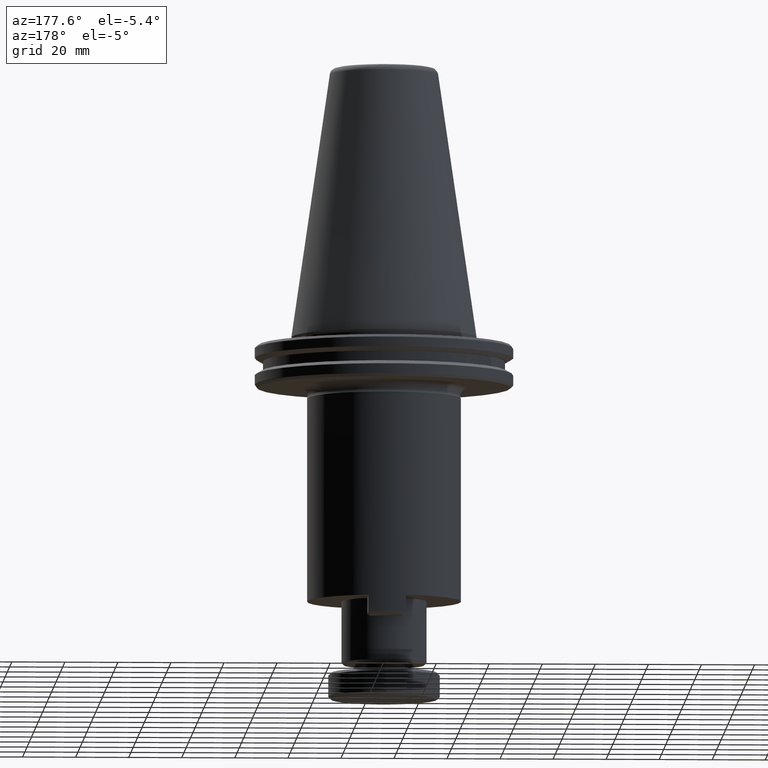
[diagram: clean part render]
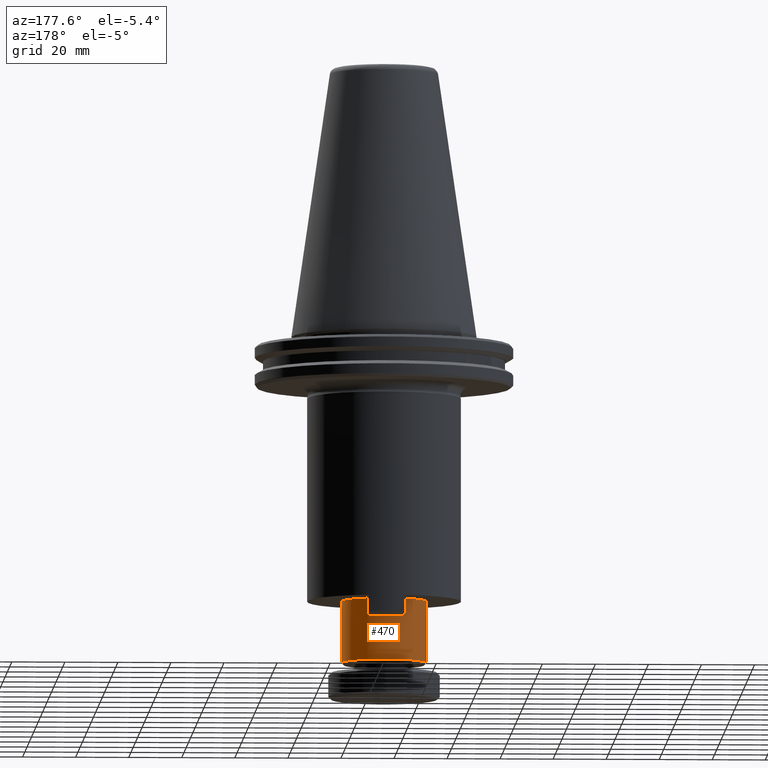
[diagram: same view with one face highlighted and labeled with its STEP entity id]
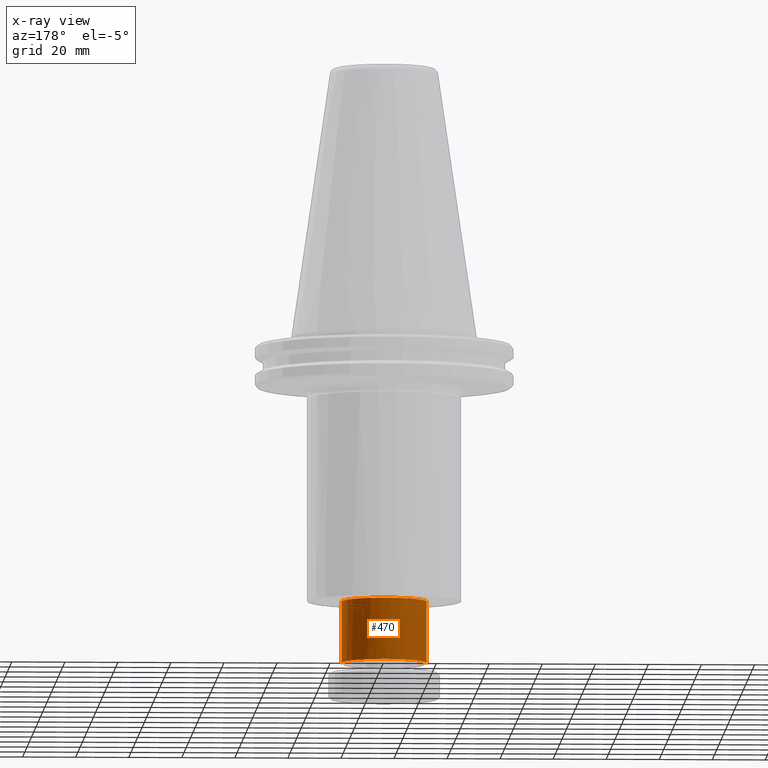
[diagram: x-ray of the same camera — body ghosted, the highlighted face saturated]
A machine part, auxiliary view. The second image highlights one B-rep face of the part: STEP entity #470.
The next image is the same camera in x-ray: the body ghosted, the highlighted face saturated — about 0% of this face is hidden behind the body in this view.
In plain terms, the highlighted cylindrical surface (partial cylindrical patch) has radius 16 mm, axis along (-0, 0, 1).
Its self-contained STEP definition (entity closure, byte-faithful):
#31 = CARTESIAN_POINT ( 'NONE',  ( 91.78900745422478700, 111.8872747687010000, -25.15049722171960800 ) ) ;
#129 = CARTESIAN_POINT ( 'NONE',  ( 75.78900745422477300, 111.8872747687010000, -2.000497217484769900 ) ) ;
#192 = DIRECTION ( 'NONE',  ( 1.000000000000000000, 0.0000000000000000000, 4.336808689942017700E-016 ) ) ;
#328 = CYLINDRICAL_SURFACE ( 'NONE', #451, 16.00000000000000000 ) ;
#358 = FACE_OUTER_BOUND ( 'NONE', #729, .T. ) ;
#359 = DIRECTION ( 'NONE',  ( -4.336808689942017700E-016, 0.0000000000000000000, 1.000000000000000000 ) ) ;
#382 = CIRCLE ( 'NONE', #1007, 16.00000000000000000 ) ;
#384 = LINE ( 'NONE', #1460, #388 ) ;
#385 = DIRECTION ( 'NONE',  ( 1.000000000000000000, 0.0000000000000000000, 4.336808689942017700E-016 ) ) ;
#388 = VECTOR ( 'NONE', #1487, 1000.000000000000000 ) ;
#413 = EDGE_CURVE ( 'NONE', #1002, #2213, #384, .T. ) ;
#451 = AXIS2_PLACEMENT_3D ( 'NONE', #1720, #359, #385 ) ;
#470 = ADVANCED_FACE ( 'NONE', ( #358 ), #328, .T. ) ;
#516 = DIRECTION ( 'NONE',  ( -4.336808689942017700E-016, 0.0000000000000000000, 1.000000000000000000 ) ) ;
#525 = CIRCLE ( 'NONE', #2155, 16.00000000000000000 ) ;
#634 = CARTESIAN_POINT ( 'NONE',  ( 91.78900745422477300, 111.8872747687010000, -2.000497217484769900 ) ) ;
#712 = DIRECTION ( 'NONE',  ( -0.0000000000000000000, -0.0000000000000000000, 1.000000000000000000 ) ) ;
#729 = EDGE_LOOP ( 'NONE', ( #1286, #940, #1616, #2490, #1546 ) ) ;
#920 = CARTESIAN_POINT ( 'NONE',  ( 91.78900745422478700, 127.8872747687009600, -25.15049722171960800 ) ) ;
#940 = ORIENTED_EDGE ( 'NONE', *, *, #1134, .T. ) ;
#1002 = VERTEX_POINT ( 'NONE', #2163 ) ;
#1007 = AXIS2_PLACEMENT_3D ( 'NONE', #1992, #1573, #1173 ) ;
#1134 = EDGE_CURVE ( 'NONE', #2446, #1002, #2506, .T. ) ;
#1173 = DIRECTION ( 'NONE',  ( 1.000000000000000000, 0.0000000000000000000, 4.336808689942017700E-016 ) ) ;
#1286 = ORIENTED_EDGE ( 'NONE', *, *, #2611, .T. ) ;
#1394 = VERTEX_POINT ( 'NONE', #2402 ) ;
#1397 = CARTESIAN_POINT ( 'NONE',  ( 107.7890074542247700, 111.8872747687010000, -2.000497217484769900 ) ) ;
#1460 = CARTESIAN_POINT ( 'NONE',  ( 75.78900745422478700, 111.8872747687010000, -25.15049722171960100 ) ) ;
#1487 = DIRECTION ( 'NONE',  ( -4.336808689942017700E-016, 0.0000000000000000000, 1.000000000000000000 ) ) ;
#1489 = CARTESIAN_POINT ( 'NONE',  ( 107.7890074542247900, 111.8872747687010000, -25.15049722171958600 ) ) ;
#1500 = DIRECTION ( 'NONE',  ( -4.336808689942017700E-016, 0.0000000000000000000, 1.000000000000000000 ) ) ;
#1546 = ORIENTED_EDGE ( 'NONE', *, *, #1843, .F. ) ;
#1573 = DIRECTION ( 'NONE',  ( -4.336808689942017700E-016, 0.0000000000000000000, 1.000000000000000000 ) ) ;
#1616 = ORIENTED_EDGE ( 'NONE', *, *, #413, .T. ) ;
#1656 = VECTOR ( 'NONE', #1500, 1000.000000000000000 ) ;
#1659 = LINE ( 'NONE', #1489, #1656 ) ;
#1720 = CARTESIAN_POINT ( 'NONE',  ( 91.78900745422478700, 111.8872747687010000, -25.15049722171959300 ) ) ;
#1843 = EDGE_CURVE ( 'NONE', #1394, #2137, #1659, .T. ) ;
#1992 = CARTESIAN_POINT ( 'NONE',  ( 91.78900745422478700, 111.8872747687010000, -25.15049722171960800 ) ) ;
#2016 = AXIS2_PLACEMENT_3D ( 'NONE', #31, #516, #192 ) ;
#2137 = VERTEX_POINT ( 'NONE', #1397 ) ;
#2155 = AXIS2_PLACEMENT_3D ( 'NONE', #634, #712, #2487 ) ;
#2163 = CARTESIAN_POINT ( 'NONE',  ( 75.78900745422478700, 111.8872747687010000, -25.15049722171961500 ) ) ;
#2213 = VERTEX_POINT ( 'NONE', #129 ) ;
#2402 = CARTESIAN_POINT ( 'NONE',  ( 107.7890074542247900, 111.8872747687010000, -25.15049722171960100 ) ) ;
#2446 = VERTEX_POINT ( 'NONE', #920 ) ;
#2487 = DIRECTION ( 'NONE',  ( 1.000000000000000000, 0.0000000000000000000, 0.0000000000000000000 ) ) ;
#2490 = ORIENTED_EDGE ( 'NONE', *, *, #2519, .F. ) ;
#2506 = CIRCLE ( 'NONE', #2016, 16.00000000000000000 ) ;
#2519 = EDGE_CURVE ( 'NONE', #2137, #2213, #525, .T. ) ;
#2611 = EDGE_CURVE ( 'NONE', #1394, #2446, #382, .T. ) ;